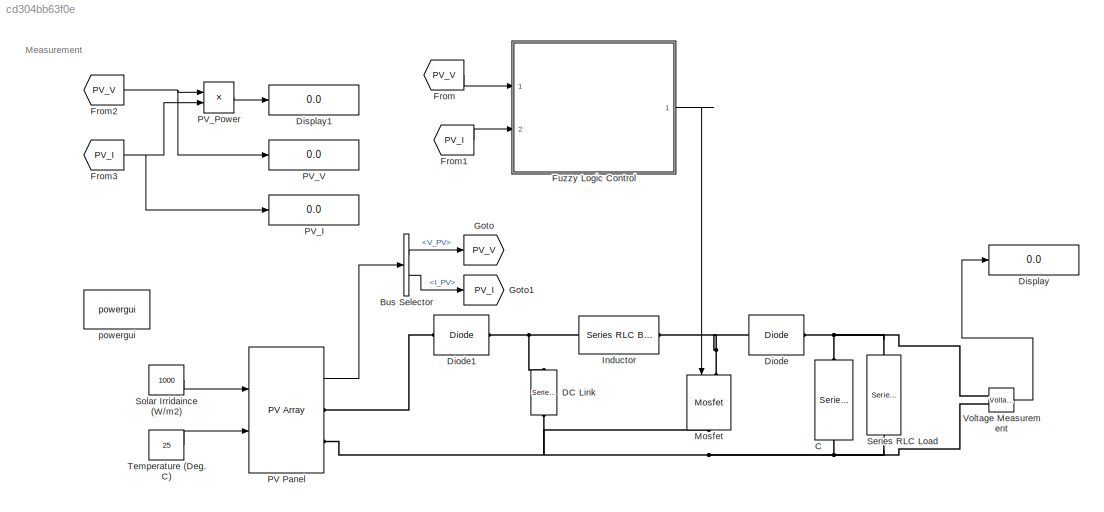
MODEL slx_cd304bb63f0e
KIND model
CONFIG AbsTol = auto
CONFIG EnableMultiTasking = off
CONFIG FixedStep = auto
CONFIG MaxStep = auto
CONFIG MinStep = auto
CONFIG RelTol = 1e-3
CONFIG SampleTimeConstraint = Unconstrained
CONFIG SolverName = VariableStepAuto
CONFIG StartTime = 0.0
CONFIG StopTime = 10.0
BLOCK [BusSelector] Bus Selector
  OutputSignals = V_PV,I_PV
  Ports = [1, 2]
BLOCK [Reference] C  REF=spsSeriesRLCBranchLib/Series RLC Branch
  NameLocation = left
  Ports = [0, 0, 0, 0, 0, 1, 1]
  SourceBlock = spsSeriesRLCBranchLib/Series RLC Branch
  SourceProductBaseCode = PS
  SourceType = Series RLC Branch
BLOCK [Reference] DC Link  REF=spsSeriesRLCBranchLib/Series RLC Branch
  AttributesFormatString = \n
  NameLocation = left
  Ports = [0, 0, 0, 0, 0, 1, 1]
  SourceBlock = spsSeriesRLCBranchLib/Series RLC Branch
  SourceProductBaseCode = PS
  SourceType = Series RLC Branch
BLOCK [Reference] Diode  REF=spsDiodeLib/Diode
  Ports = [0, 0, 0, 0, 0, 1, 1]
  SourceBlock = spsDiodeLib/Diode
  SourceProductBaseCode = PS
  SourceType = Diode
BLOCK [Reference] Diode1  REF=spsDiodeLib/Diode
  Ports = [0, 0, 0, 0, 0, 1, 1]
  SourceBlock = spsDiodeLib/Diode
  SourceProductBaseCode = PS
  SourceType = Diode
BLOCK [Display] Display
  Decimation = 1
  Ports = [1]
BLOCK [Display] Display1
  Decimation = 1
  Ports = [1]
BLOCK [From] From
  GotoTag = PV_V
  TagVisibility = global
BLOCK [From] From1
  GotoTag = PV_I
  TagVisibility = global
BLOCK [From] From2
  GotoTag = PV_V
  TagVisibility = global
BLOCK [From] From3
  GotoTag = PV_I
  TagVisibility = global
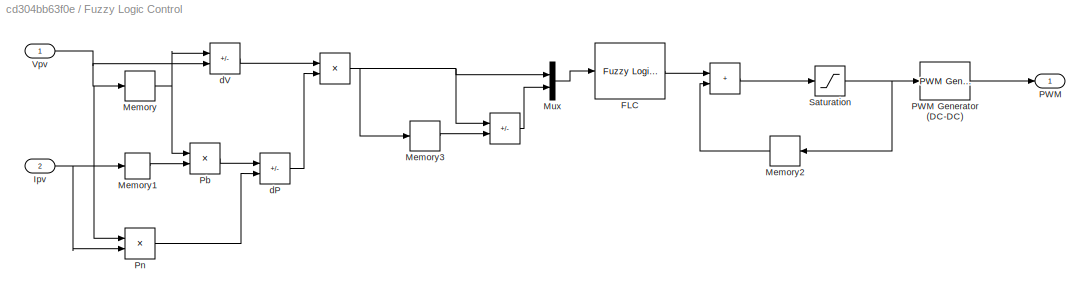
BLOCK [SubSystem] Fuzzy Logic Control 
  Ports = [2, 1]
  RequestExecContextInheritance = off
BLOCK [Sum] Fuzzy Logic Control /  
  IconShape = rectangular
  Inputs = +-
  Ports = [2, 1]
BLOCK [Sum] Fuzzy Logic Control /   
  IconShape = rectangular
  Ports = [2, 1]
BLOCK [Product] Fuzzy Logic Control /    
  Inputs = /*
  NameLocation = top
  Ports = [2, 1]
BLOCK [Reference] Fuzzy Logic Control /FLC   REF=fuzblock/Fuzzy Logic   (lib defined in mdl_858b3b3e7478)
Controller
  Ports = [1, 1]
  SourceBlock = fuzblock/Fuzzy Logic \nController
  SourceProductBaseCode = FL
  SourceType = Fuzzy Inference System
BLOCK [Inport] Fuzzy Logic Control /Ipv
  Port = 2
BLOCK [Memory] Fuzzy Logic Control /Memory 
  InheritSampleTime = on
BLOCK [Memory] Fuzzy Logic Control /Memory1 
  InheritSampleTime = on
BLOCK [Memory] Fuzzy Logic Control /Memory2
  InheritSampleTime = on
  NameLocation = top
BLOCK [Memory] Fuzzy Logic Control /Memory3
  InheritSampleTime = on
BLOCK [Mux] Fuzzy Logic Control /Mux
  DisplayOption = bar
  Inputs = 2
  Ports = [2, 1]
BLOCK [Outport] Fuzzy Logic Control /PWM
BLOCK [Reference] Fuzzy Logic Control /PWM Generator (DC-DC)  REF=spsPWMGeneratorDCDCLib/PWM Generator
(DC-DC)
  Ports = [1, 1]
  SourceBlock = spsPWMGeneratorDCDCLib/PWM Generator\n(DC-DC)
  SourceProductBaseCode = PS
  SourceType = PWM Generator (DC-DC)
BLOCK [Product] Fuzzy Logic Control /Pb
  Ports = [2, 1]
BLOCK [Product] Fuzzy Logic Control /Pn
  Ports = [2, 1]
BLOCK [Saturate] Fuzzy Logic Control /Saturation
  LowerLimit = 0.1
  UpperLimit = 0.95
BLOCK [Inport] Fuzzy Logic Control /Vpv
BLOCK [Sum] Fuzzy Logic Control /dP
  IconShape = rectangular
  Inputs = -+
  Ports = [2, 1]
BLOCK [Sum] Fuzzy Logic Control /dV
  IconShape = rectangular
  Inputs = +-
  Ports = [2, 1]
BLOCK [Goto] Goto
  GotoTag = PV_V
  TagVisibility = global
BLOCK [Goto] Goto1
  GotoTag = PV_I
  TagVisibility = global
BLOCK [Reference] Inductor  REF=spsSeriesRLCBranchLib/Series RLC Branch
  Ports = [0, 0, 0, 0, 0, 1, 1]
  SourceBlock = spsSeriesRLCBranchLib/Series RLC Branch
  SourceProductBaseCode = PS
  SourceType = Series RLC Branch
BLOCK [Reference] Mosfet  REF=spsMosfetLib/Mosfet
  NameLocation = left
  Ports = [1, 0, 0, 0, 0, 1, 1]
  SourceBlock = spsMosfetLib/Mosfet
  SourceProductBaseCode = PS
  SourceType = Mosfet
BLOCK [Reference] PV Panel    REF=spsPVArrayLib/PV Array
  Ports = [2, 1, 0, 0, 0, 0, 2]
  SourceBlock = spsPVArrayLib/PV Array
  SourceProductBaseCode = PS
  SourceType = PV array
BLOCK [Display] PV_I
  Decimation = 1
  Ports = [1]
BLOCK [Product] PV_Power 
  Ports = [2, 1]
BLOCK [Display] PV_V
  Decimation = 1
  Ports = [1]
BLOCK [Reference] Series RLC Load  REF=spsSeriesRLCLoadLib/Series RLC Load
  AttributesFormatString = \n
  NameLocation = left
  Ports = [0, 0, 0, 0, 0, 1, 1]
  SourceBlock = spsSeriesRLCLoadLib/Series RLC Load
  SourceProductBaseCode = PS
  SourceType = Series RLC Load
BLOCK [Constant] Solar Irridaince (W//m2)
  Value = 1000
BLOCK [Constant] Temperature (Deg. C)
  Value = 25
BLOCK [Reference] Voltage Measurement  REF=spsVoltageMeasurementLib/Voltage Measurement
  Ports = [0, 1, 0, 0, 0, 2]
  SourceBlock = spsVoltageMeasurementLib/Voltage Measurement
  SourceProductBaseCode = PS
  SourceType = Voltage Measurement
  UserDataPersistent = on
BLOCK [Reference] powergui  REF=spspowerguiLib/powergui
  Ports = []
  Priority = 1
  SourceBlock = spspowerguiLib/powergui
  SourceProductBaseCode = PS
  SourceType = PSB option menu block
ANNOTATION (root): Measurement
LINE Bus Selector:1 -> Goto:1
LINE Bus Selector:2 -> Goto1:1
LINE From1:1 -> Fuzzy Logic Control :2
NET From2:1 -> PV_Power :1, PV_V:1
NET From3:1 -> PV_I:1, PV_Power :2
LINE From:1 -> Fuzzy Logic Control :1
NET Fuzzy Logic Control /    :1 -> Fuzzy Logic Control /  :1, Fuzzy Logic Control /Memory3:1, Fuzzy Logic Control /Mux:1
LINE Fuzzy Logic Control /   :1 -> Fuzzy Logic Control /Saturation:1
LINE Fuzzy Logic Control /  :1 -> Fuzzy Logic Control /Mux:2
LINE Fuzzy Logic Control /FLC :1 -> Fuzzy Logic Control /   :1
NET Fuzzy Logic Control /Ipv:1 -> Fuzzy Logic Control /Memory1 :1, Fuzzy Logic Control /Pn:2
NET Fuzzy Logic Control /Memory :1 -> Fuzzy Logic Control /Pb:1, Fuzzy Logic Control /dV:1
LINE Fuzzy Logic Control /Memory1 :1 -> Fuzzy Logic Control /Pb:2
LINE Fuzzy Logic Control /Memory2:1 -> Fuzzy Logic Control /   :2
LINE Fuzzy Logic Control /Memory3:1 -> Fuzzy Logic Control /  :2
LINE Fuzzy Logic Control /Mux:1 -> Fuzzy Logic Control /FLC :1
LINE Fuzzy Logic Control /PWM Generator (DC-DC):1 -> Fuzzy Logic Control /PWM:1
LINE Fuzzy Logic Control /Pb:1 -> Fuzzy Logic Control /dP:1
LINE Fuzzy Logic Control /Pn:1 -> Fuzzy Logic Control /dP:2
NET Fuzzy Logic Control /Saturation:1 -> Fuzzy Logic Control /Memory2:1, Fuzzy Logic Control /PWM Generator (DC-DC):1
NET Fuzzy Logic Control /Vpv:1 -> Fuzzy Logic Control /Memory :1, Fuzzy Logic Control /Pn:1, Fuzzy Logic Control /dV:2
LINE Fuzzy Logic Control /dP:1 -> Fuzzy Logic Control /    :2
LINE Fuzzy Logic Control /dV:1 -> Fuzzy Logic Control /    :1
LINE Fuzzy Logic Control :1 -> Mosfet:1
LINE PV Panel  :1 -> Bus Selector:1
LINE PV_Power :1 -> Display1:1
LINE Solar Irridaince (W//m2):1 -> PV Panel  :1
LINE Temperature (Deg. C):1 -> PV Panel  :2
LINE Voltage Measurement:1 -> Display:1
PNET net1: C:LConn1 -- Diode:RConn1 -- Series RLC Load:LConn1 -- Voltage Measurement:LConn1
PNET net2: C:RConn1 -- DC Link:RConn1 -- Mosfet:RConn1 -- PV Panel  :RConn2 -- Series RLC Load:RConn1 -- Voltage Measurement:LConn2
PNET net3: DC Link:LConn1 -- Diode1:RConn1 -- Inductor:LConn1
PLINE Diode1:LConn1 -- PV Panel  :RConn1
PNET net4: Diode:LConn1 -- Inductor:RConn1 -- Mosfet:LConn1
note: NET lines group one-source signal fan-out (src -> all destinations, sorted); 1:1 wires keep LINE; PNET lines group multi-terminal physical nets as a canonical sorted terminal list (undirected conserving connections); 2-terminal nets keep the pairwise PLINE form
